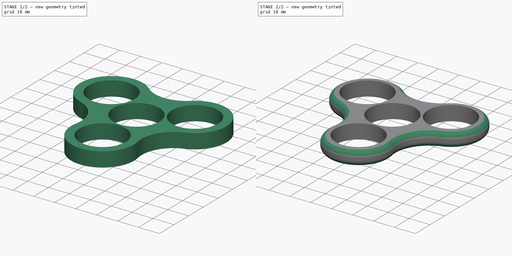
[diagram: build sequence overview — one tinted view per stage of 2, left to right]
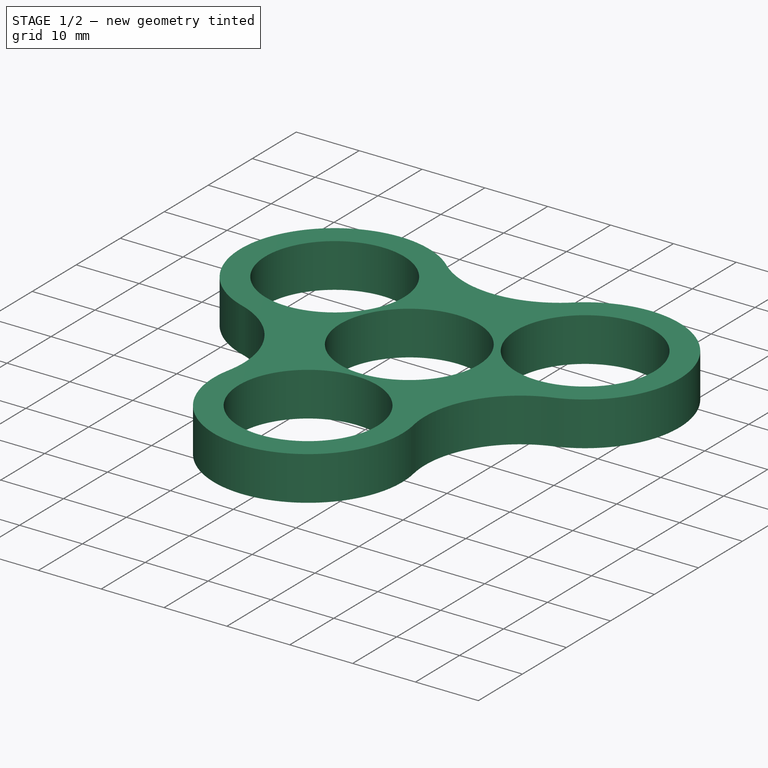
[diagram: stage 1 of 2 — iso view after this stage's code; geometry added in this stage tinted green]
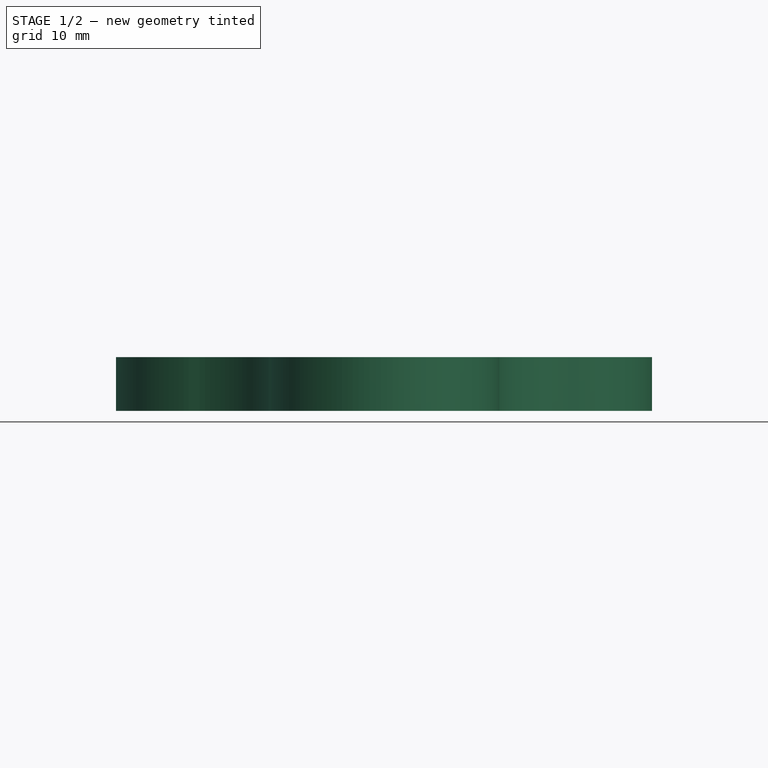
[diagram: stage 1 of 2 — front view after this stage's code; geometry added in this stage tinted green]
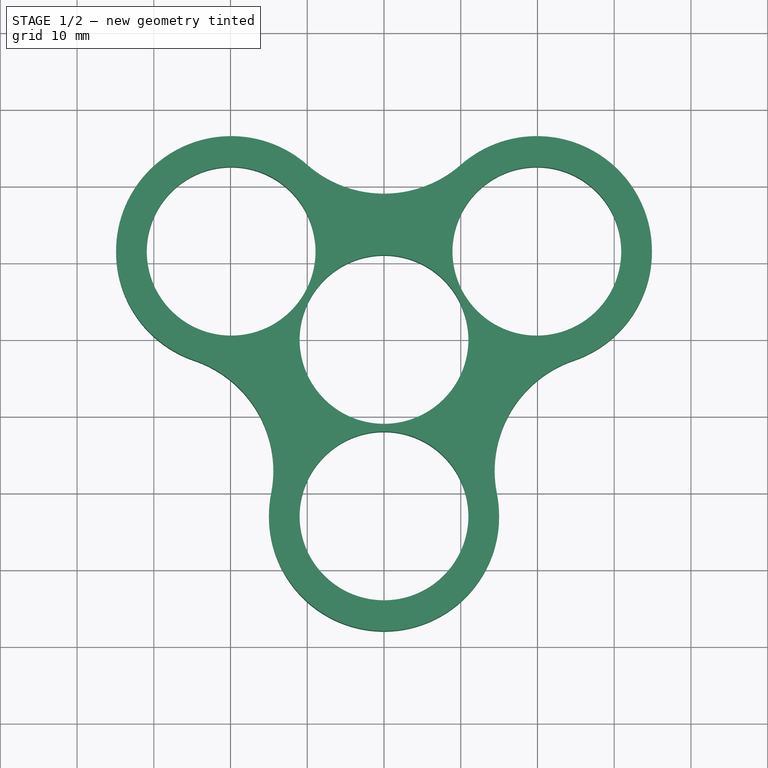
[diagram: stage 1 of 2 — top view after this stage's code; geometry added in this stage tinted green]
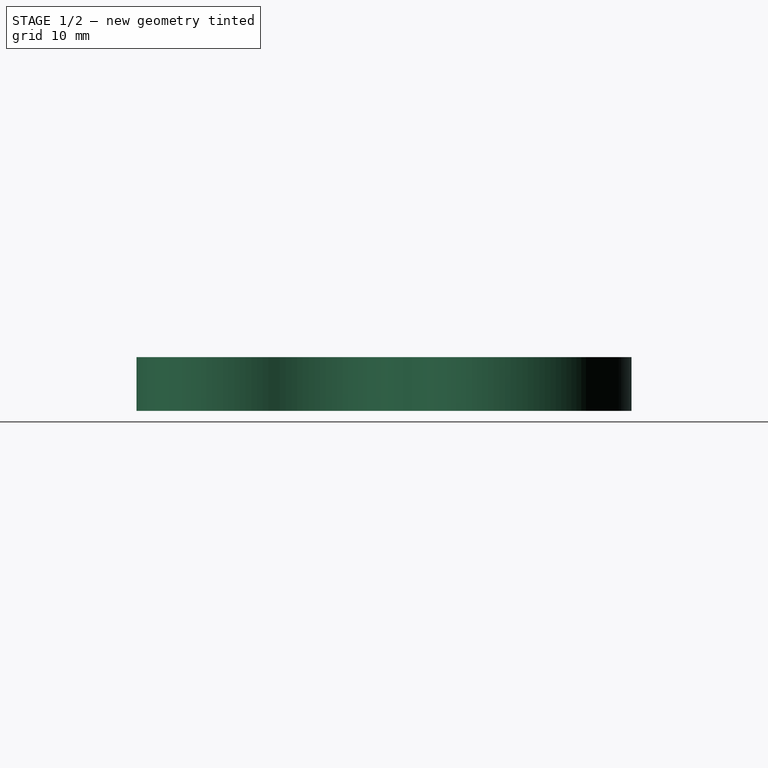
[diagram: stage 1 of 2 — right view after this stage's code; geometry added in this stage tinted green]
FCSTD DOCUMENT  (FreeCAD 0.16RUnknown)
Label: body-upsilon
License: All rights reserved
LicenseURL: http://en.wikipedia.org/wiki/All_rights_reserved
objects: Sketcher::SketchObject×1, PartDesign::Pad×1, Part::Fillet×1
note: 4 computed .brp shape members not serialized (recipe doc carries the construction recipe); baked Part::Feature solids carry a one-line shape summary decoded from their .brp

FEATURE [Sketcher::SketchObject] Sketch
  sketch-geometry (25):
    g0: ArcOfCircle CenterX=19.9186 CenterY=11.5 CenterZ=0 NormalX=0 NormalY=0 NormalZ=1 Radius=15 StartAngle=5.03936 EndAngle=8.57421
    g1: ArcOfCircle CenterX=-19.9186 CenterY=11.5 CenterZ=0 NormalX=0 NormalY=0 NormalZ=1 Radius=15 StartAngle=0.850566 EndAngle=4.38542
    g2: Circle CenterX=-19.9186 CenterY=11.5 CenterZ=0 NormalX=0 NormalY=0 NormalZ=1 Radius=11
    g3: Circle CenterX=0 CenterY=0 CenterZ=0 NormalX=0 NormalY=0 NormalZ=1 Radius=11
    g4: Circle CenterX=19.9186 CenterY=11.5 CenterZ=0 NormalX=0 NormalY=0 NormalZ=1 Radius=11
    g5: ArcOfCircle CenterX=0 CenterY=34.2 CenterZ=0 NormalX=0 NormalY=0 NormalZ=1 Radius=15.2 StartAngle=3.99216 EndAngle=5.43262
    g6: Circle CenterX=0 CenterY=-23 CenterZ=0 NormalX=0 NormalY=0 NormalZ=1 Radius=11
    g7: ArcOfCircle CenterX=0 CenterY=-23 CenterZ=0 NormalX=0 NormalY=0 NormalZ=1 Radius=15 StartAngle=2.94496 EndAngle=6.47981
    g8: ArcOfCircle CenterX=-29.6181 CenterY=-17.1 CenterZ=0 NormalX=0 NormalY=0 NormalZ=1 Radius=15.2 StartAngle=6.08656 EndAngle=7.52701
    g9: ArcOfCircle CenterX=29.6181 CenterY=-17.1 CenterZ=0 NormalX=0 NormalY=0 NormalZ=1 Radius=15.2 StartAngle=1.89777 EndAngle=3.33822
    g10: GeomPoint [constr] X=0 Y=-12 Z=0
    g11: GeomPoint [constr] X=0 Y=-11 Z=0
    g12: GeomPoint [constr] X=0 Y=-34 Z=0
    g13: GeomPoint [constr] X=0 Y=-38 Z=0
    g14: LineSegment [constr] StartX=-19.9186 StartY=11.5 StartZ=0 EndX=0 EndY=-23 EndZ=0
    g15: LineSegment [constr] StartX=0 StartY=-23 StartZ=0 EndX=19.9186 EndY=11.5 EndZ=0
    g16: LineSegment [constr] StartX=19.9186 StartY=11.5 StartZ=0 EndX=-19.9186 EndY=11.5 EndZ=0
    g17: LineSegment [constr] StartX=-29.6181 StartY=-17.1 StartZ=0 EndX=0 EndY=34.2 EndZ=0
    g18: LineSegment [constr] StartX=0 StartY=34.2 StartZ=0 EndX=29.6181 EndY=-17.1 EndZ=0
    g19: LineSegment [constr] StartX=29.6181 StartY=-17.1 StartZ=0 EndX=-29.6181 EndY=-17.1 EndZ=0
    g20: LineSegment [constr] StartX=-19.9186 StartY=11.5 StartZ=0 EndX=0 EndY=0 EndZ=0
    g21: LineSegment [constr] StartX=0 StartY=0 StartZ=0 EndX=19.9186 EndY=11.5 EndZ=0
    g22: LineSegment [constr] StartX=0 StartY=0 StartZ=0 EndX=0 EndY=-23 EndZ=0
    g23: GeomPoint [constr] X=0 Y=19 Z=0
    g24: GeomPoint [constr] X=0 Y=11 Z=0
  constraints (63):
    c: Coincident(g2,g1)
    c: Coincident(g4,g0)
    c: Coincident(g3,g-1)
    c: Coincident(g5,g1)  'Constraint21'
    c: Coincident(g5,g0)  'Constraint20'
    c: Equal(g6,g3)
    c: Equal(g3,g4)
    c: Equal(g4,g2)
    c: Equal(g7,g1)
    c: Equal(g1,g0)
    c: Coincident(g7,g6)
    c: Coincident(g8,g1)
    c: Coincident(g8,g7)
    c: Coincident(g9,g7)
    c: Coincident(g9,g0)
    c: Equal(g5,g8)
    c: Equal(g8,g9)
    c: PointOnObject(g10,g6)
    c: PointOnObject(g11,g3)
    c: PointOnObject(g11,g-2)
    c: PointOnObject(g10,g-2)
    c: PointOnObject(g12,g6)
    c: PointOnObject(g12,g-2)
    c: PointOnObject(g13,g7)
    c: PointOnObject(g13,g-2)
    c: DistanceY(g12,g6) = 11  'Bearing Outer Radius'
    c: Coincident(g14,g1)  'Constraint27'
    c: Coincident(g14,g6)
    c: Coincident(g15,g6)
    c: Coincident(g15,g0)
    c: Coincident(g16,g0)
    c: Coincident(g16,g1)
    c: Horizontal(g16)
    c: Equal(g16,g14)
    c: Equal(g14,g15)
    c: DistanceY(g10,g11) = 1  'Bearing Distance'
    c: Coincident(g17,g8)
    c: Coincident(g17,g5)
    c: Coincident(g18,g5)
    c: Coincident(g18,g9)
    c: Coincident(g19,g9)
    c: Coincident(g19,g8)
    c: Horizontal(g19)
    c: Equal(g19,g17)
    c: Equal(g17,g18)
    c: Coincident(g20,g1)
    c: Coincident(g20,g-1)
    c: Coincident(g21,g-1)
    c: Coincident(g22,g-1)
    c: Coincident(g22,g6)
    c: Vertical(g22)
    c: Equal(g22,g21)
    c: Equal(g21,g20)
    c: Coincident(g21,g0)
    c: Tangent(g5,g0)
    c: Tangent(g8,g1)
    c: PointOnObject(g23,g5)
    c: PointOnObject(g23,g-2)
    c: Tangent(g9,g7)  'Constraint60'
    c: PointOnObject(g24,g3)
    c: PointOnObject(g24,g-2)
    c: DistanceY(g24,g23) = 8  'Body Inner Thickness'
    c: DistanceY(g13,g12) = 4  'Body Outer Thickness'
FEATURE [PartDesign::Pad] Pad
  Length = 7
  Length2 = 100
  Sketch = -> Sketch
  Type = 0
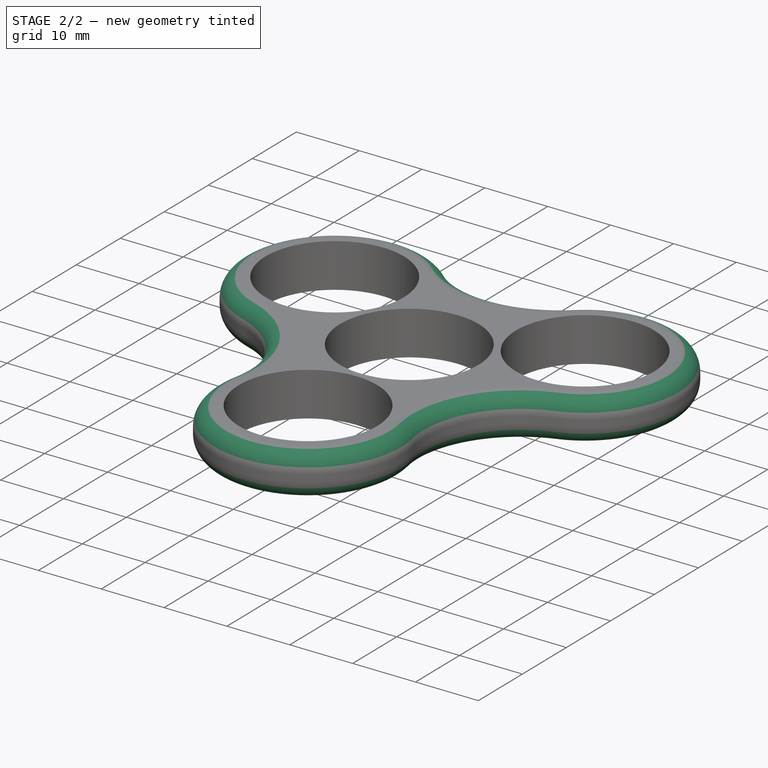
[diagram: stage 2 of 2 — iso view after this stage's code; geometry added in this stage tinted green]
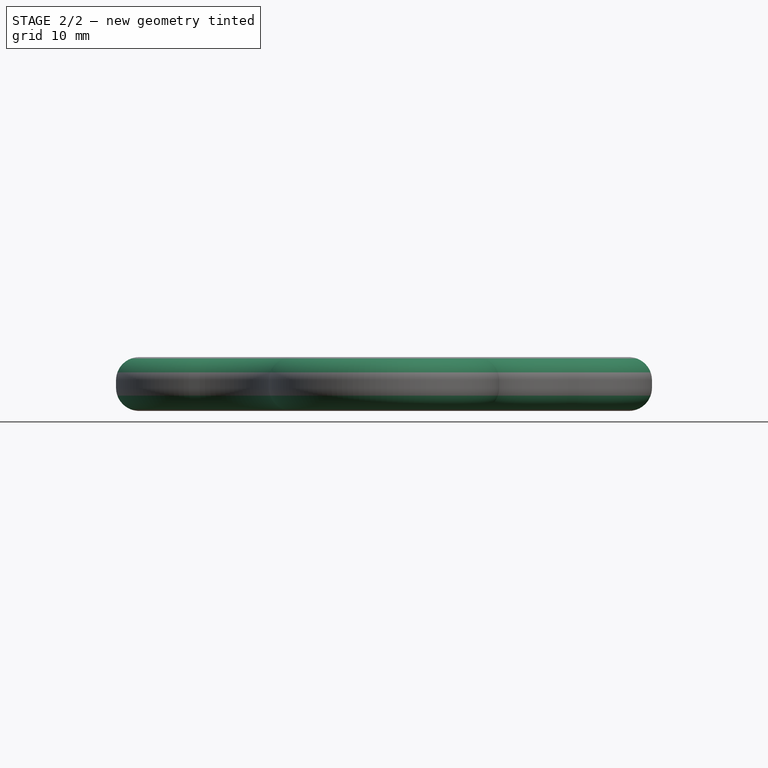
[diagram: stage 2 of 2 — front view after this stage's code; geometry added in this stage tinted green]
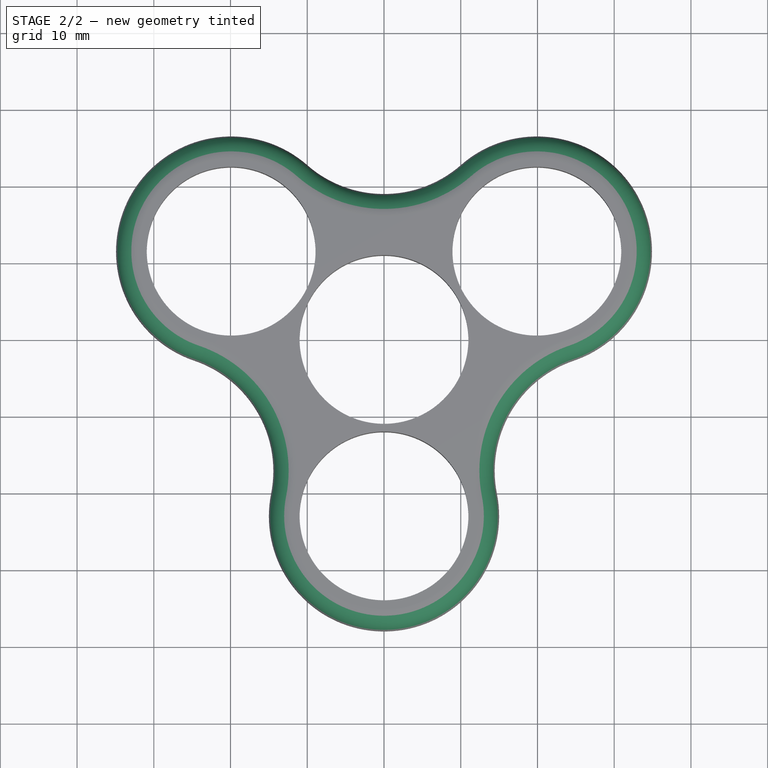
[diagram: stage 2 of 2 — top view after this stage's code; geometry added in this stage tinted green]
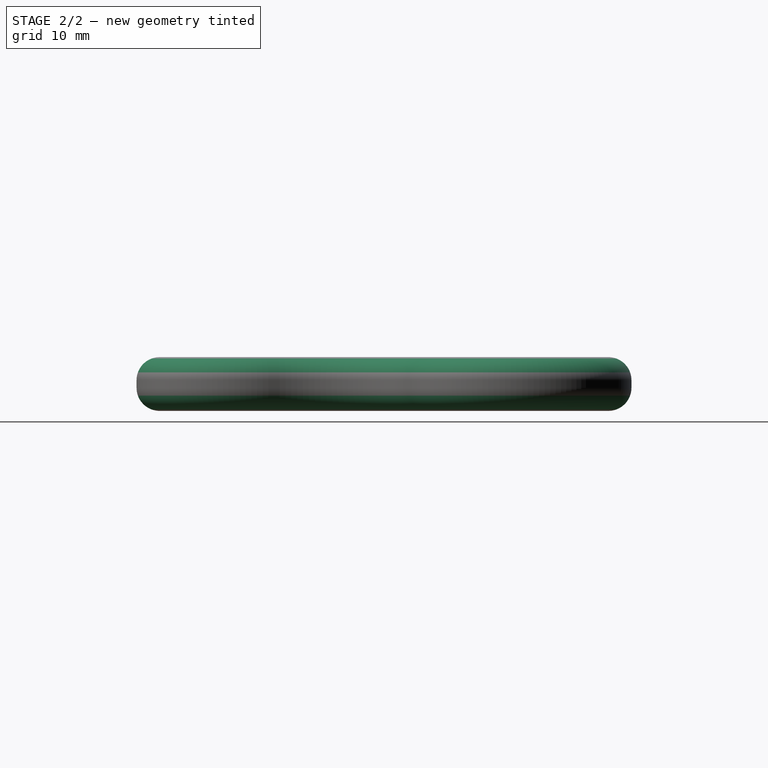
[diagram: stage 2 of 2 — right view after this stage's code; geometry added in this stage tinted green]
FEATURE [Part::Fillet] Fillet  label="Body"
  Base = -> Pad
  Edges = 2 edges r=3: [Edge3,Edge4]
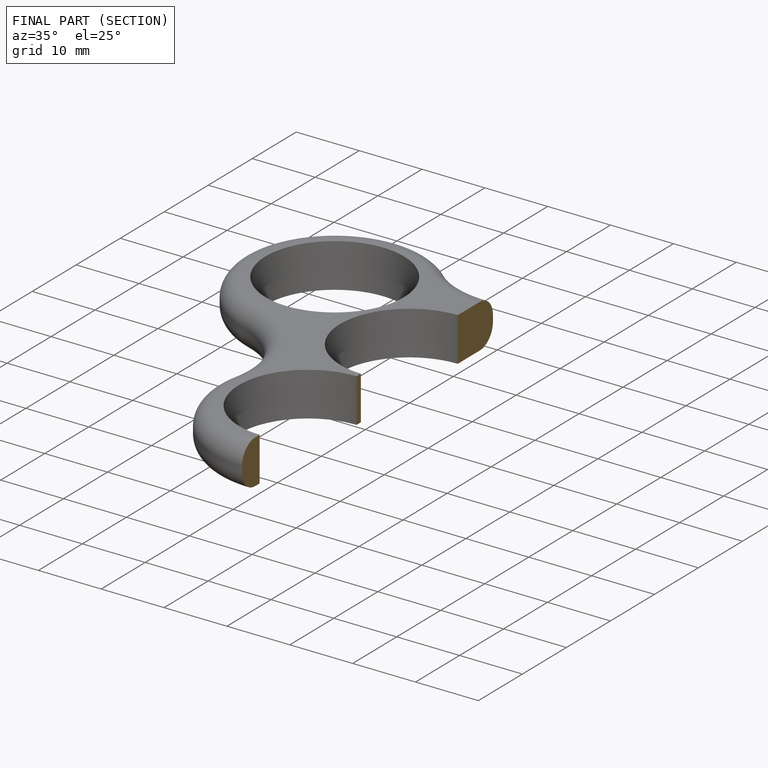
[diagram: finished part — half-section view (interior)]
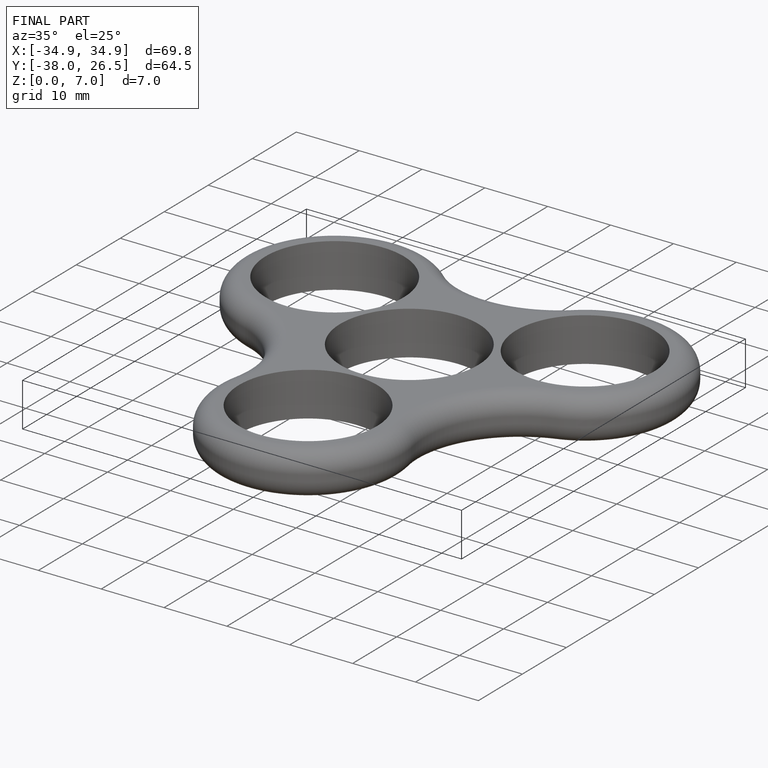
[diagram: finished part — iso view with bounding-box wireframe]
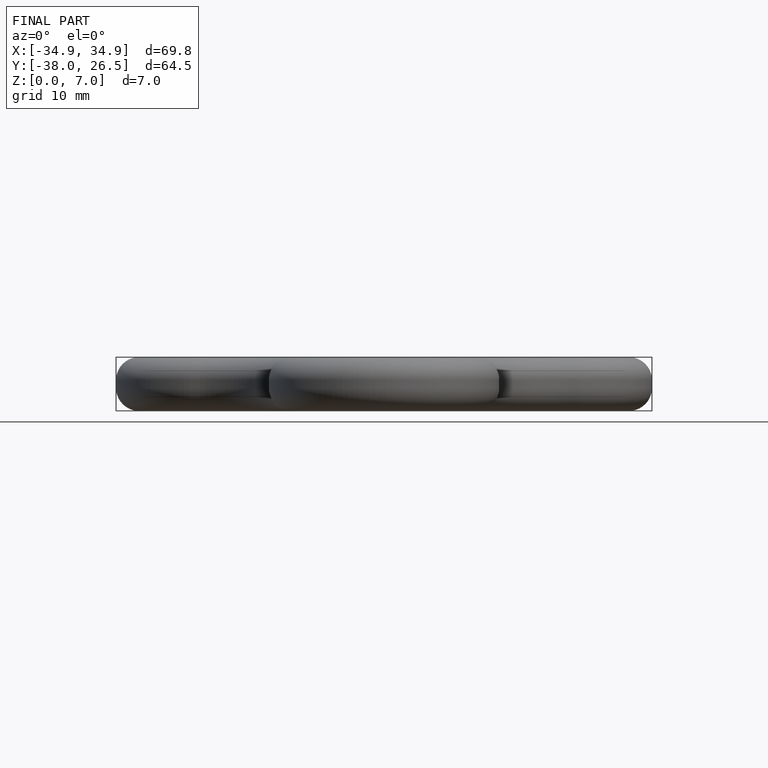
[diagram: finished part — front view with bounding-box wireframe]
